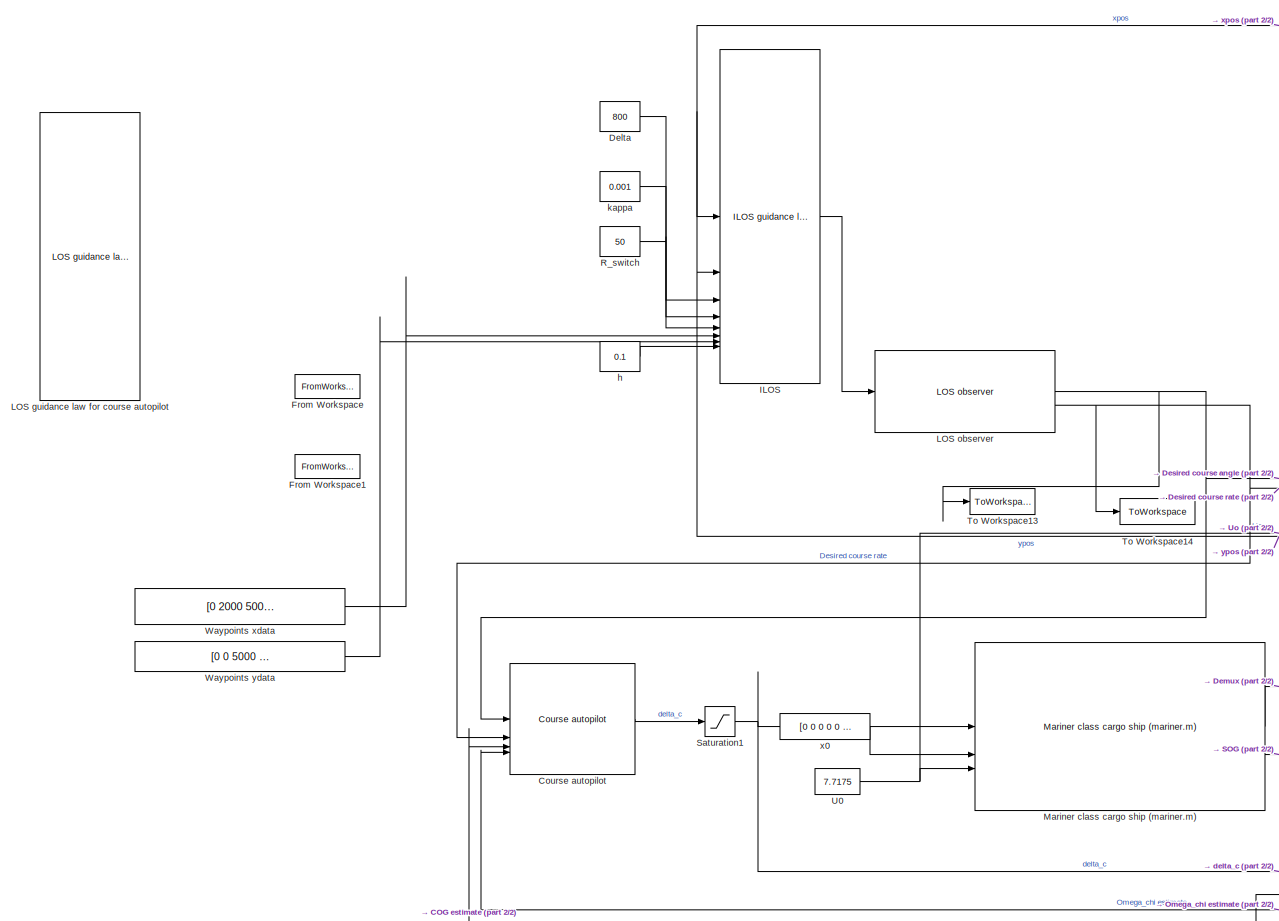
[diagram: root canvas - part 1/2, left side, full height]
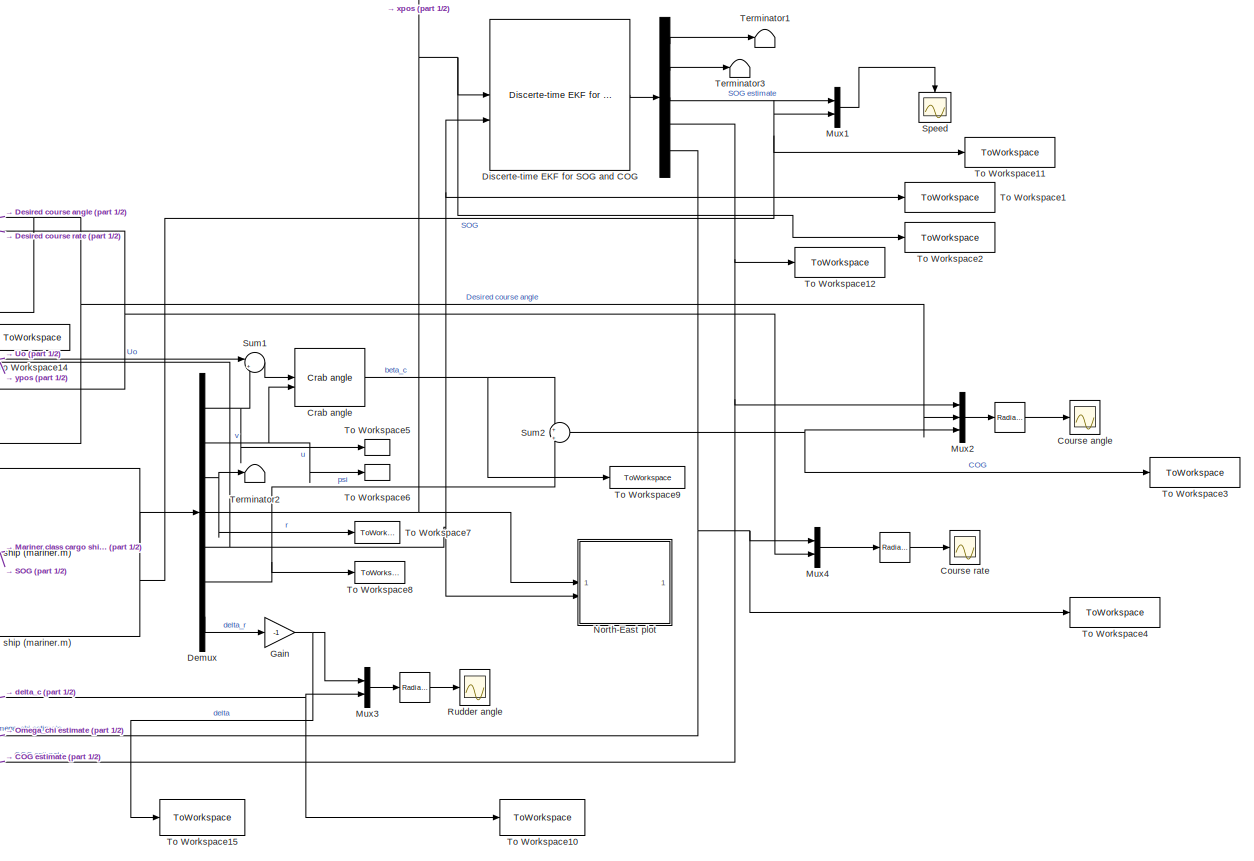
[diagram: root canvas - part 2/2, right side, full height]
MODEL slx_0b716b982299
KIND model
CONFIG AbsTol = auto
CONFIG EnableMultiTasking = on
CONFIG FixedStep = 0.1
CONFIG MaxStep = auto
CONFIG MinStep = auto
CONFIG RelTol = 1e-3
CONFIG SampleTimeConstraint = Unconstrained
CONFIG SolverName = ode4
CONFIG StartTime = 0.0
CONFIG StopTime = 5000
WORKSPACE source: mxarray member
WORKSPACE h_samp = 0.5
BLOCK [Reference]     REF=simulink_extras/Transformations/Radians
to Degrees
  SourceBlock = simulink_extras/Transformations/Radians\nto Degrees
  SourceType = RadiansToDegrees
BLOCK [Reference]         REF=simulink_extras/Transformations/Radians
to Degrees
  SourceBlock = simulink_extras/Transformations/Radians\nto Degrees
  SourceType = RadiansToDegrees
BLOCK [Reference]              REF=simulink_extras/Transformations/Radians
to Degrees
  SourceBlock = simulink_extras/Transformations/Radians\nto Degrees
  SourceType = RadiansToDegrees
BLOCK [Demux]             
  Outputs = 5
BLOCK [Scope] Course angle
  Floating = off
  NumInputPorts = 1
  ScopeSpecificationString = Simulink.scopes.TimeScopeBlockCfg('CurrentConfiguration', extmgr.ConfigurationSet(extmgr.Configuration('Core','General UI',true),extmgr.Configuration('Core','Source UI',true),extmgr.Configuration('Sources','WiredSimulink',true,'DataLoggingVariableName','ScopeData1','DataLoggingSaveFormat','StructureWithTime','DataLoggingDecimation','10','DataLoggingDecimateData',true),extmgr.Configuration('Visuals...<+1952ch>
BLOCK [Reference] Course autopilot   REF=mssSimulink/Control/Autopilots/Course autopilot 
  SourceBlock = mssSimulink/Control/Autopilots/Course autopilot
  SourceType = Course Autopilot
BLOCK [Scope] Course rate 
  Commented = on
  Floating = off
  NumInputPorts = 1
  ScopeSpecificationString = Simulink.scopes.TimeScopeBlockCfg('CurrentConfiguration', extmgr.ConfigurationSet(extmgr.Configuration('Core','General UI',true),extmgr.Configuration('Core','Source UI',true),extmgr.Configuration('Sources','WiredSimulink',true,'DataLoggingVariableName','ScopeData3','DataLoggingSaveFormat','StructureWithTime','DataLoggingDecimation','10','DataLoggingDecimateData',true),extmgr.Configuration('Visuals...<+1881ch>
BLOCK [Reference] Crab angle  REF=mssSimulink/Modelling/Kinematics/Crab angle
  SourceBlock = mssSimulink/Modelling/Kinematics/Crab angle
  SourceType = SubSystem
BLOCK [Constant] Delta
  Value = 800
BLOCK [Demux] Demux
  Outputs = 7
BLOCK [Reference] Discerte-time EKF for SOG and COG  REF=mssSimulink/Navigation/Estimators/Discerte-time EKF for SOG and COG
  SourceBlock = mssSimulink/Navigation/Estimators/Discerte-time EKF for SOG and COG
BLOCK [FromWorkspace] From Workspace
  Commented = on
  VariableName = x_data
BLOCK [FromWorkspace] From Workspace1
  Commented = on
  VariableName = y_data
BLOCK [Gain] Gain
  Gain = -1
BLOCK [Reference] ILOS  REF=mssSimulink/Guidance/ILOS guidance law for heading autopilot
  SourceBlock = mssSimulink/Guidance/ILOS guidance law for heading autopilot
  SourceType = SubSystem
BLOCK [Reference] LOS guidance law for course autopilot  REF=mssSimulink/Guidance/LOS guidance law for course autopilot
  Commented = on
  SourceBlock = mssSimulink/Guidance/LOS guidance law for course autopilot
  SourceType = SubSystem
BLOCK [Reference] LOS observer  REF=mssSimulink/Guidance/LOS observer
  SourceBlock = mssSimulink/Guidance/LOS observer
  SourceType = LOS observer
BLOCK [Reference] Mariner class cargo ship (mariner.m)  REF=mssSimulink/Marine craft models/Mariner class cargo ship (mariner.m)
  SourceBlock = mssSimulink/Marine craft models/Mariner class cargo ship (mariner.m)
BLOCK [Mux] Mux1
  DisplayOption = bar
  Inputs = 2
BLOCK [Mux] Mux2
  DisplayOption = bar
  Inputs = 3
BLOCK [Mux] Mux3
  DisplayOption = bar
  Inputs = 2
BLOCK [Mux] Mux4
  DisplayOption = bar
  Inputs = 2
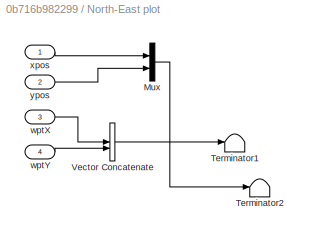
BLOCK [SubSystem] North-East plot
  AncestorBlock = mssSimulink/Utilities/Visualization/North-East plot
  Commented = on
  StopFcn = x = xyplot.Data(:,1);\ny = xyplot.Data(:,2);\nwptX = waypoints(:,1);\nwptY = waypoints(:,2);\nfigure(gcf);\nplot(y,x,'b','linewidth',2);\nhold on;\nplot(wptY,wptX,'o','MarkerSize',15,'MarkerEdgeColor','k','MarkerFaceColor','c');\nhold off;\nxlabel('East (m)', 'FontSize', 14);\nylabel('North (m)', 'FontSize', 14);\ntitle('North-East Positions (m)', 'FontSize', 14);\naxis('equal');\ngrid;
BLOCK [Mux] North-East plot/Mux
  DisplayOption = bar
  Inputs = 2
BLOCK [Terminator] North-East plot/Terminator1
BLOCK [Terminator] North-East plot/Terminator2
BLOCK [Concatenate] North-East plot/Vector Concatenate
  ConcatenateDimension = 2
  Mode = Multidimensional array
BLOCK [Inport] North-East plot/wptX
  Port = 3
BLOCK [Inport] North-East plot/wptY
  Port = 4
BLOCK [Inport] North-East plot/xpos
BLOCK [Inport] North-East plot/ypos
  Port = 2
BLOCK [Constant] R_switch
  Value = 50
BLOCK [Scope] Rudder angle
  Commented = on
  Floating = off
  NumInputPorts = 1
  ScopeSpecificationString = Simulink.scopes.TimeScopeBlockCfg('CurrentConfiguration', extmgr.ConfigurationSet(extmgr.Configuration('Core','General UI',true),extmgr.Configuration('Core','Source UI',true),extmgr.Configuration('Sources','WiredSimulink',true,'DataLoggingVariableName','ScopeData1','DataLoggingSaveFormat','StructureWithTime','DataLoggingDecimation','10','DataLoggingDecimateData',true),extmgr.Configuration('Visuals...<+2037ch>
BLOCK [Saturate] Saturation1
  LowerLimit = -40*pi/180
  UpperLimit = 40*pi/180
BLOCK [Scope] Speed
  Commented = on
  Floating = off
  NameLocation = left
  NumInputPorts = 1
  ScopeSpecificationString = Simulink.scopes.TimeScopeBlockCfg('CurrentConfiguration', extmgr.ConfigurationSet(extmgr.Configuration('Core','General UI',true),extmgr.Configuration('Core','Source UI',true),extmgr.Configuration('Sources','WiredSimulink',true,'DataLoggingVariableName','ScopeData4','DataLoggingSaveFormat','StructureWithTime','DataLoggingDecimation','10','DataLoggingDecimateData',true),extmgr.Configuration('Visuals...<+2013ch>
BLOCK [Sum] Sum1
  Inputs = |++
BLOCK [Sum] Sum2
  Inputs = +|+
BLOCK [Terminator] Terminator1
BLOCK [Terminator] Terminator2
BLOCK [Terminator] Terminator3
BLOCK [ToWorkspace] To Workspace1
  FixptAsFi = on
  MaxDataPoints = inf
  SampleTime = -1
  VariableName = x
BLOCK [ToWorkspace] To Workspace10
  FixptAsFi = on
  MaxDataPoints = inf
  SampleTime = -1
  VariableName = delta_d
BLOCK [ToWorkspace] To Workspace11
  FixptAsFi = on
  MaxDataPoints = inf
  SampleTime = -1
  VariableName = U
BLOCK [ToWorkspace] To Workspace12
  FixptAsFi = on
  MaxDataPoints = inf
  SampleTime = -1
  VariableName = chi_hat
BLOCK [ToWorkspace] To Workspace13
  FixptAsFi = on
  MaxDataPoints = inf
  SampleTime = -1
  VariableName = chi_d
BLOCK [ToWorkspace] To Workspace14
  FixptAsFi = on
  MaxDataPoints = inf
  SampleTime = -1
  VariableName = omega_chi_d
BLOCK [ToWorkspace] To Workspace15
  FixptAsFi = on
  MaxDataPoints = inf
  SampleTime = -1
  VariableName = delta
BLOCK [ToWorkspace] To Workspace2
  FixptAsFi = on
  MaxDataPoints = inf
  SampleTime = -1
  VariableName = y
BLOCK [ToWorkspace] To Workspace3
  FixptAsFi = on
  MaxDataPoints = inf
  SampleTime = -1
  VariableName = chi
BLOCK [ToWorkspace] To Workspace4
  FixptAsFi = on
  MaxDataPoints = inf
  SampleTime = -1
  VariableName = omega_chi
BLOCK [ToWorkspace] To Workspace5
  FixptAsFi = on
  MaxDataPoints = inf
  SampleTime = -1
  VariableName = u
BLOCK [ToWorkspace] To Workspace6
  FixptAsFi = on
  MaxDataPoints = inf
  SampleTime = -1
  VariableName = v
BLOCK [ToWorkspace] To Workspace7
  FixptAsFi = on
  MaxDataPoints = inf
  SampleTime = -1
  VariableName = r
BLOCK [ToWorkspace] To Workspace8
  FixptAsFi = on
  MaxDataPoints = inf
  SampleTime = -1
  VariableName = psi
BLOCK [ToWorkspace] To Workspace9
  FixptAsFi = on
  MaxDataPoints = inf
  SampleTime = -1
  VariableName = beta_c
BLOCK [Constant] U0
  Value = 7.7175
BLOCK [Constant] Waypoints xdata
  Value = [0 2000 5000 3000 6000 10000]'
BLOCK [Constant] Waypoints ydata
  Value = [0 0 5000  8000 12000 12000]'
BLOCK [Constant] h
  Value = 0.1
BLOCK [Constant] kappa
  Value = 0.001
BLOCK [Constant] x0
  Value = [0 0 0 0 0 0 0]'
LINE             :1 -> Terminator1:1
LINE             :2 -> Terminator3:1
LINE             :3 -> Mux1:1
NET             :4 -> Course autopilot :3, Mux2:1, To Workspace12:1
NET             :5 -> Course autopilot :4, Mux4:1, To Workspace4:1
LINE            :1 -> Course angle:1
LINE       :1 -> Rudder angle:1
LINE   :1 -> Course rate :1
LINE Course autopilot :1 -> Saturation1:1
NET Crab angle:1 -> Sum2:1, To Workspace9:1
LINE Delta:1 -> ILOS:3
NET Demux:1 -> Sum1:2, To Workspace5:1
NET Demux:2 -> Crab angle:2, To Workspace6:1
NET Demux:3 -> Terminator2:1, To Workspace7:1
NET Demux:4 -> Discerte-time EKF for SOG and COG:1, ILOS:1, North-East plot:1, To Workspace2:1
NET Demux:5 -> Discerte-time EKF for SOG and COG:2, ILOS:2, North-East plot:2, To Workspace1:1
NET Demux:6 -> Sum2:2, To Workspace8:1
LINE Demux:7 -> Gain:1
LINE Discerte-time EKF for SOG and COG:1 ->             :1
NET Gain:1 -> Mux3:1, To Workspace15:1
LINE ILOS:1 -> LOS observer:1
NET LOS observer:1 -> Course autopilot :1, Mux2:2, To Workspace13:1
NET LOS observer:2 -> Course autopilot :2, Mux4:2, To Workspace14:1
LINE Mariner class cargo ship (mariner.m):1 -> Demux:1
NET Mariner class cargo ship (mariner.m):2 -> Mux1:2, To Workspace11:1
LINE Mux1:1 -> Speed:1
LINE Mux2:1 ->            :1
LINE Mux3:1 ->       :1
LINE Mux4:1 ->   :1
LINE R_switch:1 -> ILOS:5
NET Saturation1:1 -> Mariner class cargo ship (mariner.m):1, Mux3:2, To Workspace10:1
LINE Sum1:1 -> Crab angle:1
NET Sum2:1 -> Mux2:3, To Workspace3:1
NET U0:1 -> Mariner class cargo ship (mariner.m):3, Sum1:1
LINE Waypoints xdata:1 -> ILOS:6
LINE Waypoints ydata:1 -> ILOS:7
LINE h:1 -> ILOS:8
LINE kappa:1 -> ILOS:4
LINE x0:1 -> Mariner class cargo ship (mariner.m):2
note: NET lines group one-source signal fan-out (src -> all destinations, sorted); 1:1 wires keep LINE
